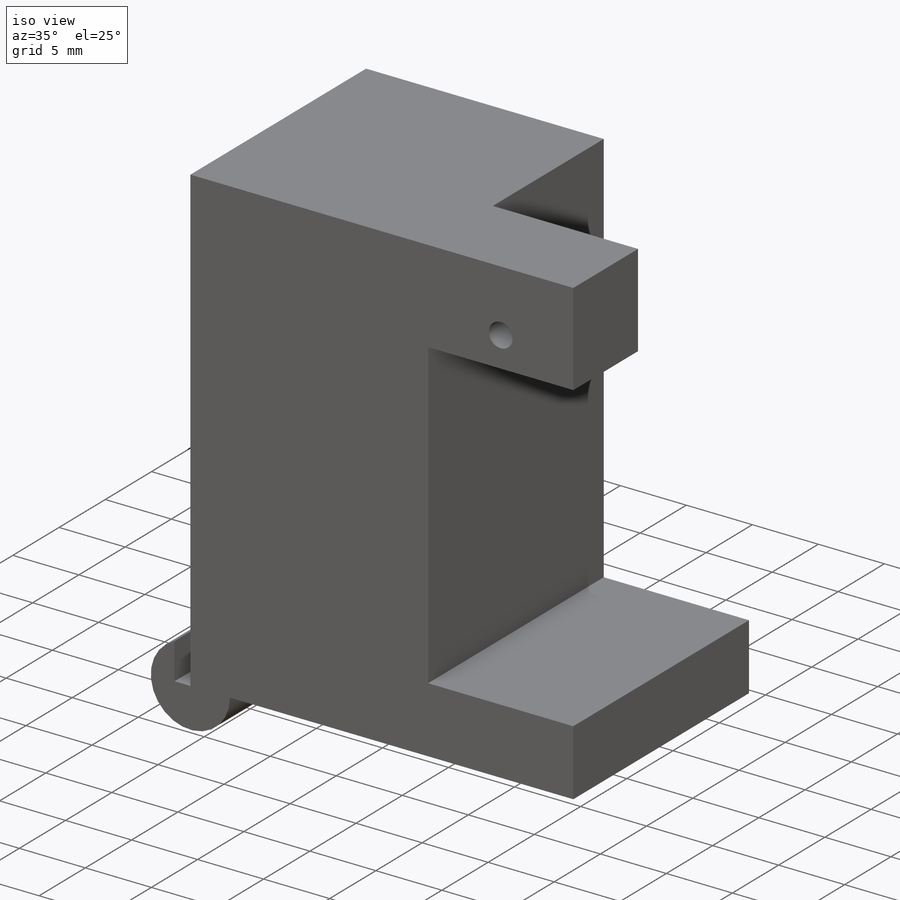
[diagram: iso view]
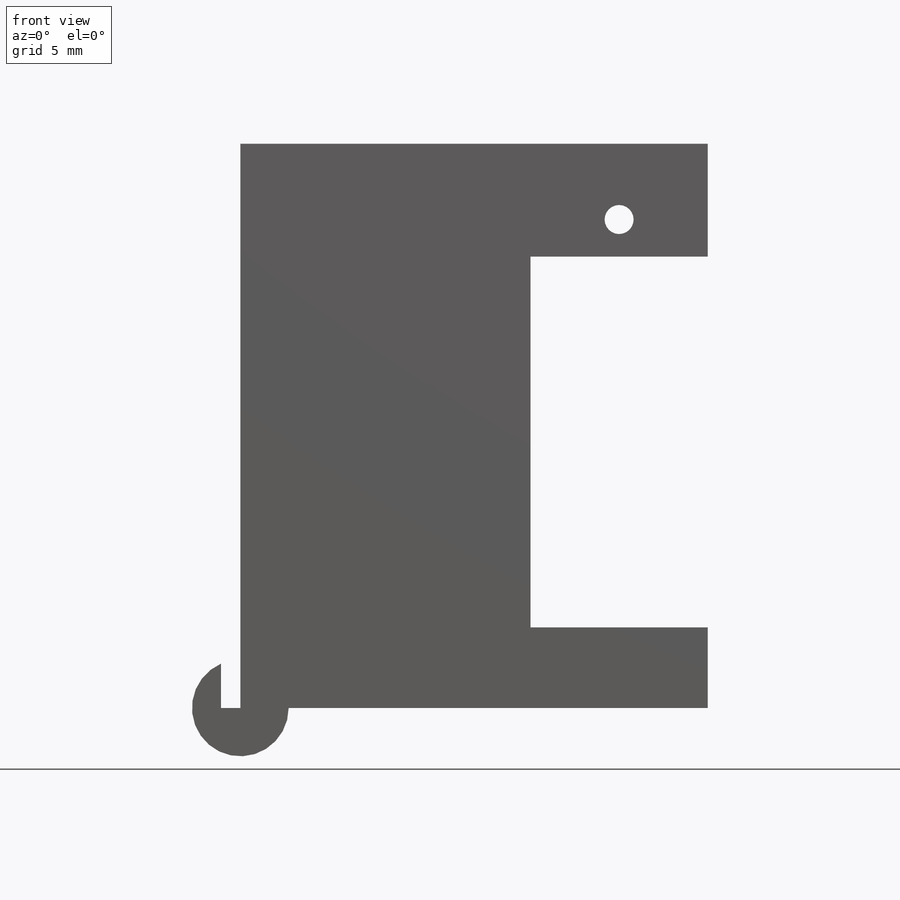
[diagram: front view]
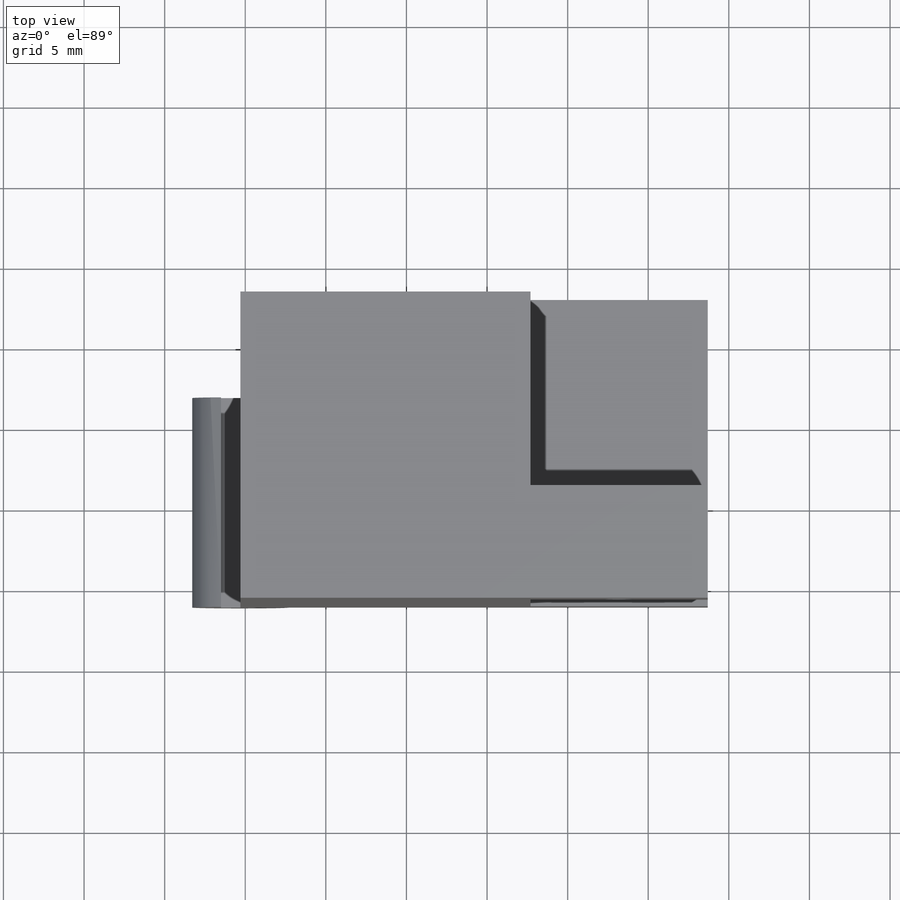
[diagram: top view]
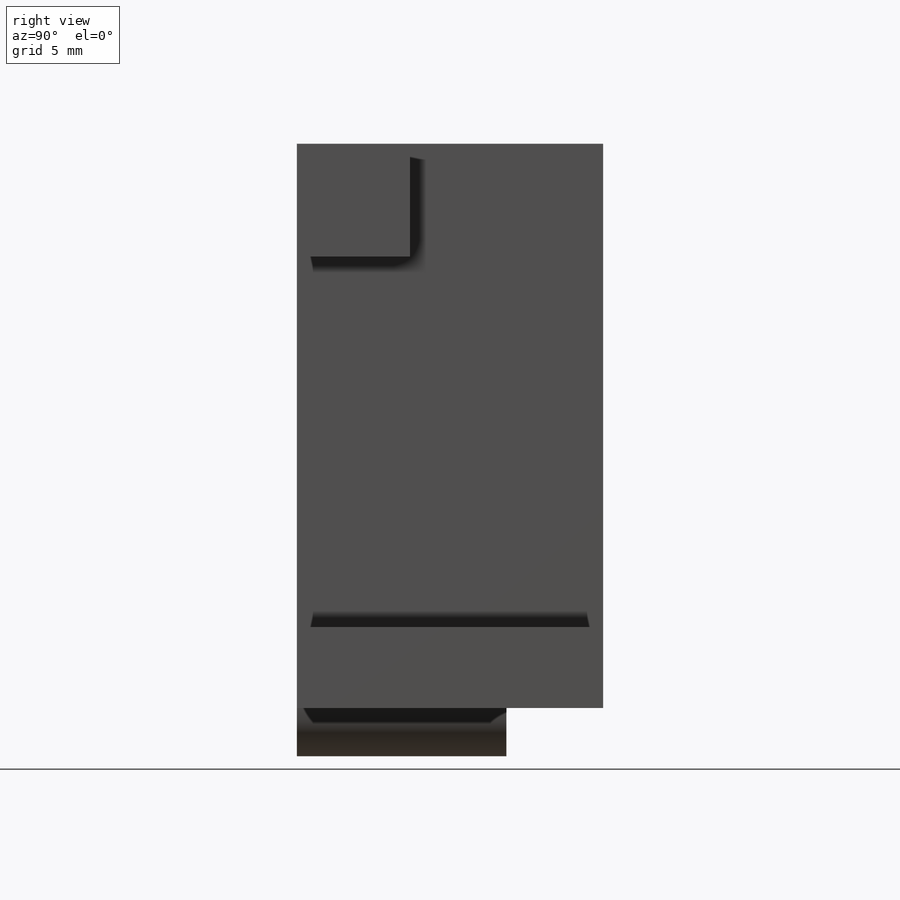
[diagram: right view]
SOLIDWORKS PART (.sldprt)
format: sldprt  version: not decoded by parser v0  size: 216,064 bytes
history: native  units: mm
features: sketch x9, cut_extrude x6, extrude x2, material x1, revolve x1 (+13 scaffold rows collapsed)
feature tree (32):
  scaffold x13  (default folders/planes/origin — collapsed)
  material  "Material <not specified>"
  sketch  "Sketch1"  dims[D1=18.0mm D2=19.0mm]
  extrude  "Boss-Extrude1"  Depth=35mm
  sketch  "Sketch2"  dims[D1=23.0mm D2=5.0mm]
  extrude  "Boss-Extrude2"  Depth=11mm
  sketch  "Sketch3"  dims[D1=~7.317419mm D2=7.0mm]
  cut_extrude  "Cut-Extrude1"  [1 undecoded]
  sketch  "Sketch7"  dims[D1=3.0mm]
  revolve  "Revolve2"  Angle=360deg
  sketch  "Sketch9"  dims[D1=6.0mm D2=10.0mm]
  cut_extrude  "Cut-Extrude3"  [1 undecoded]
  sketch  "Sketch10"
  cut_extrude  "Cut-Extrude4"  [1 undecoded]
  sketch  "Sketch11"  dims[D1=1.2mm]
  cut_extrude  "Cut-Extrude5"  [1 undecoded]
  sketch  "Sketch12"  dims[c1.D1=2.8mm c1.D2=2.8mm c1.D3=2.8mm c2.D2=4.0mm c2.D3=4.0mm]
  cut_extrude  "Cut-Extrude6"  Depth=5mm
  sketch  "Sketch13"  dims[D1=1.8mm D2=2.3mm D3=5.5mm D4=6.0mm]
  cut_extrude  "Cut-Extrude7"  [1 undecoded]
decode coverage: 12 of 18 modeling features carry decoded parameters
note: ~ marks probable driven/reference dimensions
note: 5 parameter values undecoded
summary: no parameter record found for 5 features
note: suppression state not decoded; provenance and decode notes live in map.json
